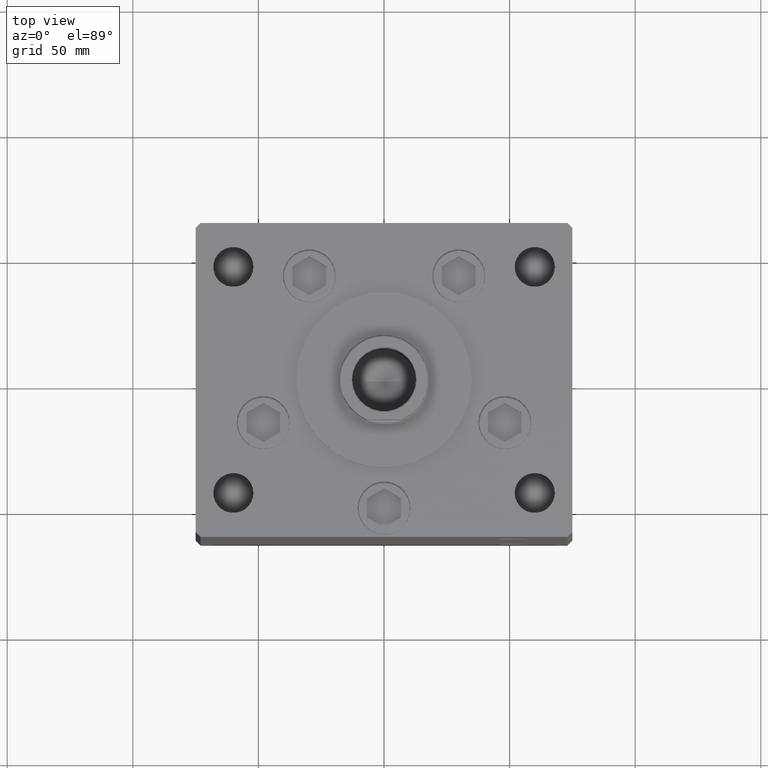
[diagram: clean part render]
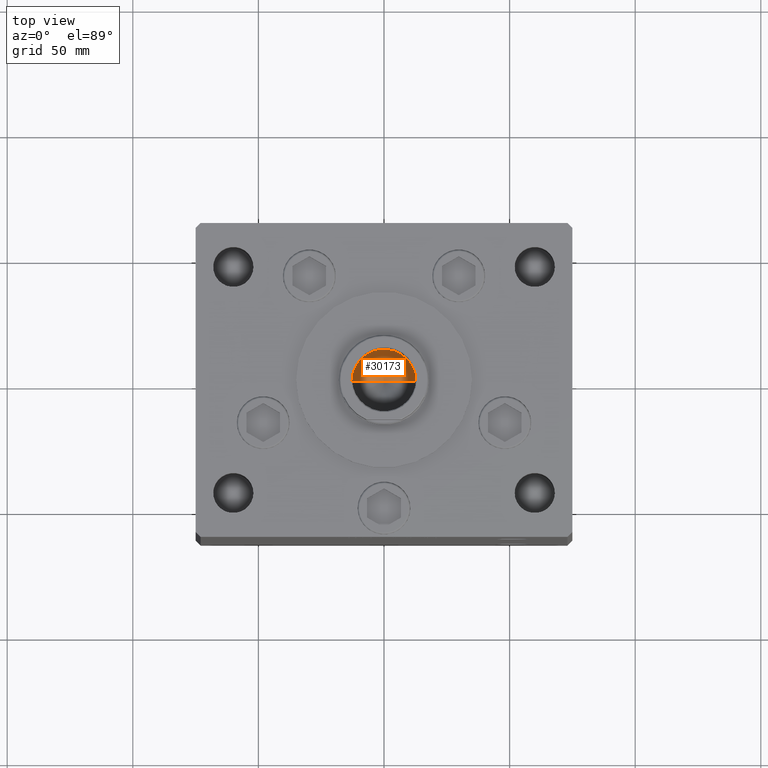
[diagram: same view with one face highlighted and labeled with its STEP entity id]
A machine part, top view. The second image highlights one B-rep face of the part: STEP entity #30173.
In plain terms, the highlighted conical surface has half-angle 59 deg.
Its self-contained STEP definition (entity closure, byte-faithful):
#600 = VECTOR ( 'NONE', #28878, 1000.000000000000114 ) ;
#860 = CONICAL_SURFACE ( 'NONE', #7547, 12.74999999999999112, 1.029744258676655200 ) ;
#4179 = ORIENTED_EDGE ( 'NONE', *, *, #15954, .T. ) ;
#7395 = CARTESIAN_POINT ( 'NONE',  ( 0.000000000000000000, 0.000000000000000000, 137.5000000000000000 ) ) ;
#7547 = AXIS2_PLACEMENT_3D ( 'NONE', #23475, #40070, #48243 ) ;
#7663 = FACE_OUTER_BOUND ( 'NONE', #13990, .T. ) ;
#11332 = CARTESIAN_POINT ( 'NONE',  ( -1.307202896762960287E-14, 0.000000000000000000, 129.8390271073986355 ) ) ;
#11522 = ORIENTED_EDGE ( 'NONE', *, *, #28487, .F. ) ;
#13740 = VERTEX_POINT ( 'NONE', #27052 ) ;
#13990 = EDGE_LOOP ( 'NONE', ( #11522, #4179, #14547 ) ) ;
#14547 = ORIENTED_EDGE ( 'NONE', *, *, #37317, .T. ) ;
#15061 = DIRECTION ( 'NONE',  ( -0.000000000000000000, -0.000000000000000000, 1.000000000000000000 ) ) ;
#15954 = EDGE_CURVE ( 'NONE', #20041, #13740, #32038, .T. ) ;
#17021 = CARTESIAN_POINT ( 'NONE',  ( 12.74999999999999112, 0.000000000000000000, 137.5000000000000000 ) ) ;
#20041 = VERTEX_POINT ( 'NONE', #11332 ) ;
#21140 = CARTESIAN_POINT ( 'NONE',  ( -12.74999999999999112, 1.561424668912874125E-15, 137.5000000000000000 ) ) ;
#21268 = CIRCLE ( 'NONE', #50722, 12.74999999999999112 ) ;
#23475 = CARTESIAN_POINT ( 'NONE',  ( 0.000000000000000000, 0.000000000000000000, 137.5000000000000000 ) ) ;
#24295 = DIRECTION ( 'NONE',  ( -0.8571673007021125557, 1.049727191138618942E-16, 0.5150380749100536004 ) ) ;
#27052 = CARTESIAN_POINT ( 'NONE',  ( 12.74999999999999112, 0.000000000000000000, 137.5000000000000000 ) ) ;
#28487 = EDGE_CURVE ( 'NONE', #20041, #51893, #49071, .T. ) ;
#28878 = DIRECTION ( 'NONE',  ( 0.8571673007021125557, 0.000000000000000000, 0.5150380749100536004 ) ) ;
#29387 = VECTOR ( 'NONE', #24295, 1000.000000000000114 ) ;
#30173 = ADVANCED_FACE ( 'NONE', ( #7663 ), #860, .F. ) ;
#32038 = LINE ( 'NONE', #17021, #600 ) ;
#35086 = DIRECTION ( 'NONE',  ( 1.000000000000000000, 0.000000000000000000, 0.000000000000000000 ) ) ;
#37317 = EDGE_CURVE ( 'NONE', #13740, #51893, #21268, .T. ) ;
#40070 = DIRECTION ( 'NONE',  ( -0.000000000000000000, -0.000000000000000000, 1.000000000000000000 ) ) ;
#41836 = CARTESIAN_POINT ( 'NONE',  ( -12.74999999999999112, 1.561424668912874125E-15, 137.5000000000000000 ) ) ;
#48243 = DIRECTION ( 'NONE',  ( 1.000000000000000000, 0.000000000000000000, 0.000000000000000000 ) ) ;
#49071 = LINE ( 'NONE', #21140, #29387 ) ;
#50722 = AXIS2_PLACEMENT_3D ( 'NONE', #7395, #15061, #35086 ) ;
#51893 = VERTEX_POINT ( 'NONE', #41836 ) ;